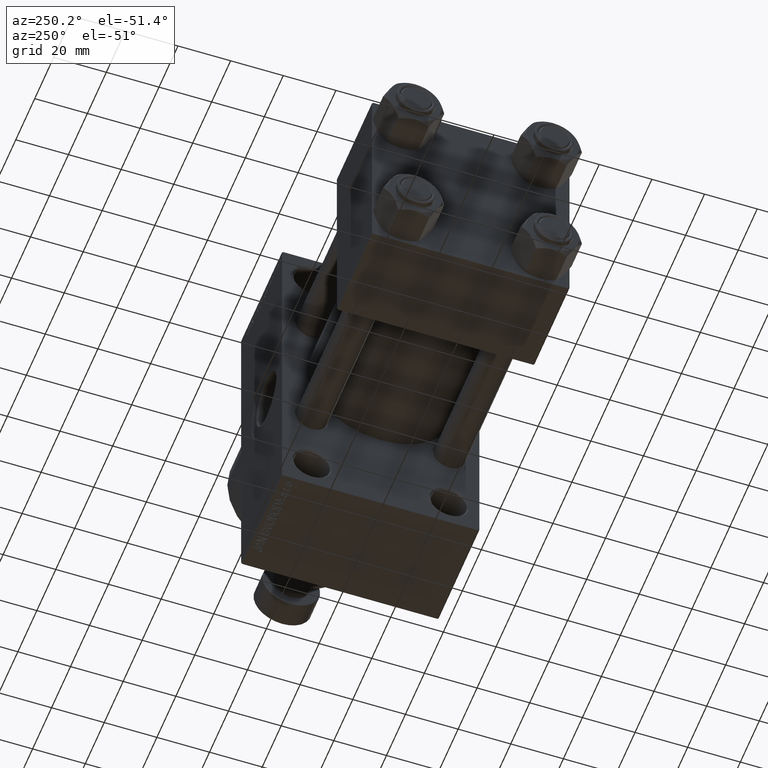
[diagram: clean part render]
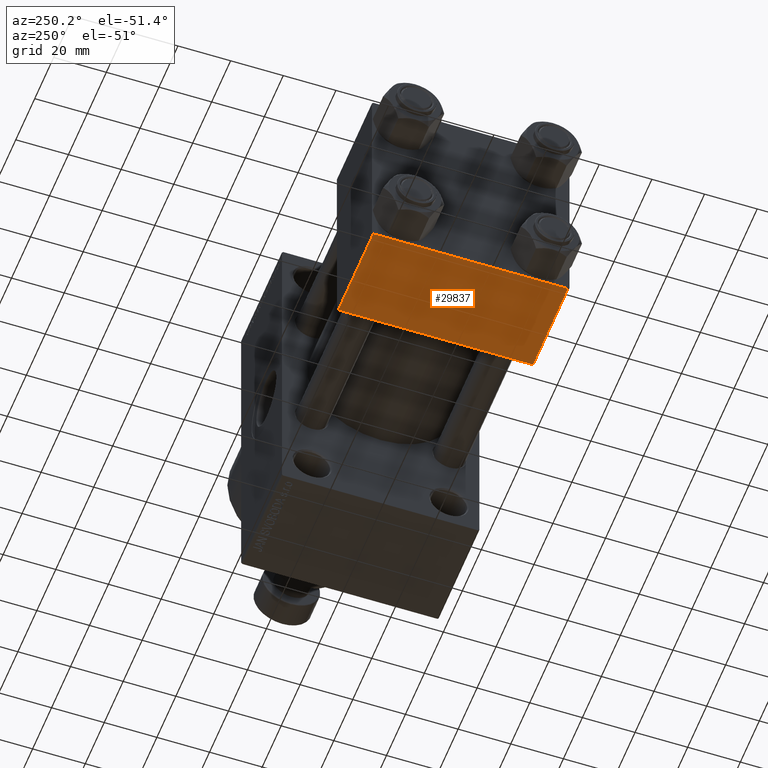
[diagram: same view with one face highlighted and labeled with its STEP entity id]
A machine part, auxiliary view. The second image highlights one B-rep face of the part: STEP entity #29837.
In plain terms, the highlighted planar face has unit normal (0, 0, -1).
Its self-contained STEP definition (entity closure, byte-faithful):
#107 = EDGE_CURVE ( 'NONE', #28812, #36787, #29571, .T. ) ;
#568 = CARTESIAN_POINT ( 'NONE',  ( 0.000000000000000000, 37.49999999999999289, -37.50000000000000000 ) ) ;
#1577 = VECTOR ( 'NONE', #33915, 1000.000000000000000 ) ;
#3959 = DIRECTION ( 'NONE',  ( 0.000000000000000000, -1.000000000000000000, -9.251858538542972814E-17 ) ) ;
#5274 = ORIENTED_EDGE ( 'NONE', *, *, #19664, .F. ) ;
#12095 = LINE ( 'NONE', #12810, #1577 ) ;
#12572 = CARTESIAN_POINT ( 'NONE',  ( 0.000000000000000000, -37.00000000000002132, -37.50000000000000711 ) ) ;
#12810 = CARTESIAN_POINT ( 'NONE',  ( 37.00000000000000000, 36.99999999999997868, -37.50000000000000000 ) ) ;
#13444 = CARTESIAN_POINT ( 'NONE',  ( 37.00000000000000000, 37.49999999999999289, -37.50000000000000000 ) ) ;
#13733 = CARTESIAN_POINT ( 'NONE',  ( 37.00000000000000000, 37.49999999999999289, -37.50000000000000000 ) ) ;
#15093 = LINE ( 'NONE', #568, #34043 ) ;
#16449 = EDGE_CURVE ( 'NONE', #41213, #28812, #35268, .T. ) ;
#16900 = DIRECTION ( 'NONE',  ( 0.000000000000000000, 1.000000000000000000, 9.251858538542972814E-17 ) ) ;
#17171 = CARTESIAN_POINT ( 'NONE',  ( 0.000000000000000000, 36.99999999999997868, -37.50000000000000000 ) ) ;
#19664 = EDGE_CURVE ( 'NONE', #26417, #36787, #15093, .T. ) ;
#22911 = ORIENTED_EDGE ( 'NONE', *, *, #45937, .T. ) ;
#24172 = PLANE ( 'NONE',  #45063 ) ;
#26417 = VERTEX_POINT ( 'NONE', #17171 ) ;
#26894 = CARTESIAN_POINT ( 'NONE',  ( 0.000000000000000000, -37.00000000000002132, -37.50000000000000711 ) ) ;
#28812 = VERTEX_POINT ( 'NONE', #39961 ) ;
#29571 = LINE ( 'NONE', #26894, #45086 ) ;
#29837 = ADVANCED_FACE ( 'NONE', ( #39186 ), #24172, .T. ) ;
#33915 = DIRECTION ( 'NONE',  ( 1.000000000000000000, 0.000000000000000000, 0.000000000000000000 ) ) ;
#34043 = VECTOR ( 'NONE', #3959, 1000.000000000000000 ) ;
#35268 = LINE ( 'NONE', #13444, #45513 ) ;
#36787 = VERTEX_POINT ( 'NONE', #12572 ) ;
#38984 = ORIENTED_EDGE ( 'NONE', *, *, #107, .T. ) ;
#39128 = CARTESIAN_POINT ( 'NONE',  ( 37.00000000000000000, 36.99999999999997868, -37.50000000000000000 ) ) ;
#39186 = FACE_OUTER_BOUND ( 'NONE', #46773, .T. ) ;
#39961 = CARTESIAN_POINT ( 'NONE',  ( 37.00000000000000000, -37.00000000000002132, -37.50000000000000711 ) ) ;
#41213 = VERTEX_POINT ( 'NONE', #39128 ) ;
#41676 = DIRECTION ( 'NONE',  ( -1.000000000000000000, 0.000000000000000000, 0.000000000000000000 ) ) ;
#43239 = DIRECTION ( 'NONE',  ( 0.000000000000000000, -1.000000000000000000, -9.251858538542972814E-17 ) ) ;
#43308 = DIRECTION ( 'NONE',  ( 0.000000000000000000, 9.251858538542972814E-17, -1.000000000000000000 ) ) ;
#45063 = AXIS2_PLACEMENT_3D ( 'NONE', #13733, #43308, #16900 ) ;
#45086 = VECTOR ( 'NONE', #41676, 1000.000000000000000 ) ;
#45513 = VECTOR ( 'NONE', #43239, 1000.000000000000000 ) ;
#45937 = EDGE_CURVE ( 'NONE', #26417, #41213, #12095, .T. ) ;
#46572 = ORIENTED_EDGE ( 'NONE', *, *, #16449, .T. ) ;
#46773 = EDGE_LOOP ( 'NONE', ( #5274, #22911, #46572, #38984 ) ) ;